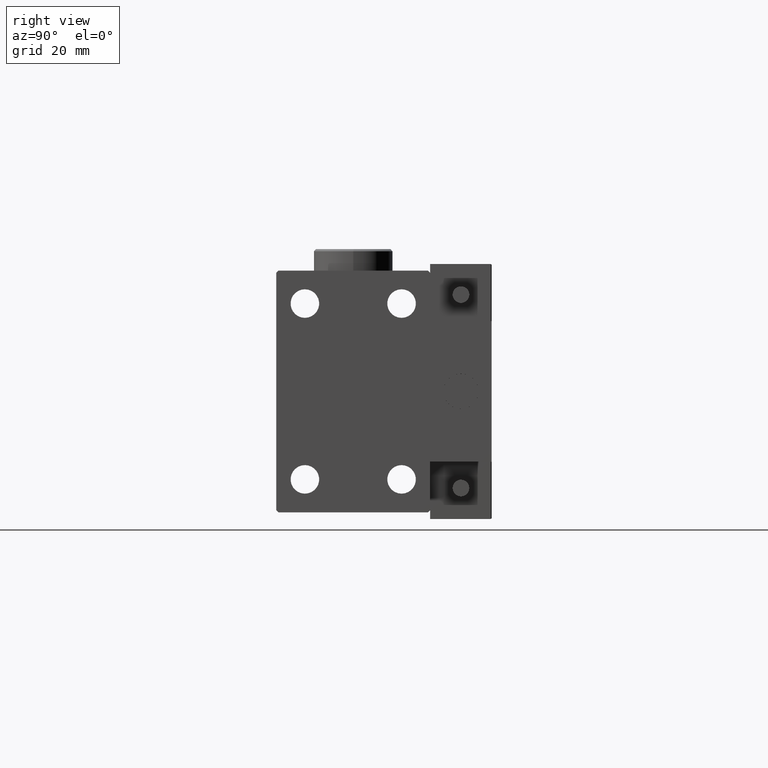
[diagram: clean part render]
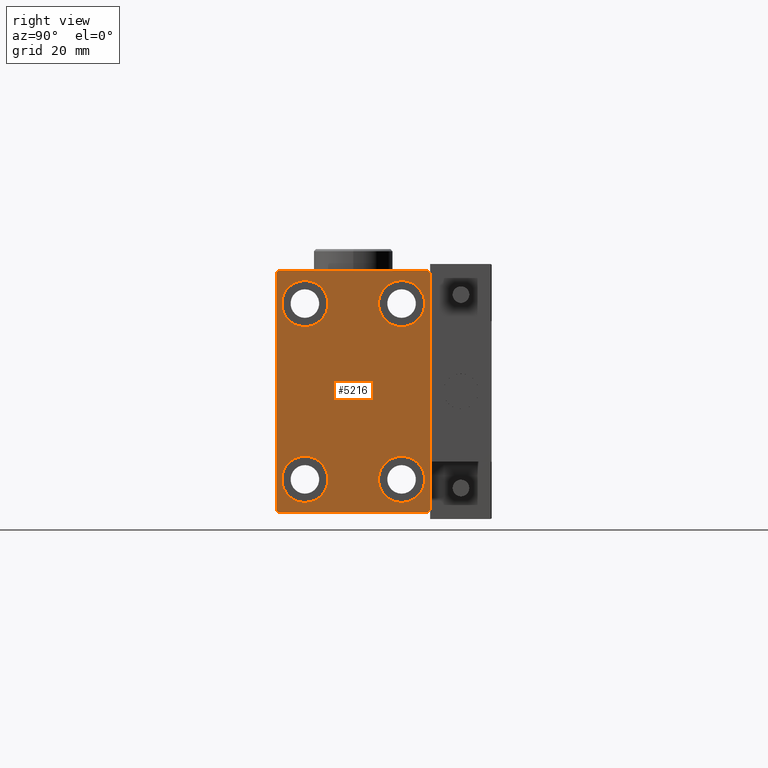
[diagram: same view with one face highlighted and labeled with its STEP entity id]
A machine part, right view. The second image highlights one B-rep face of the part: STEP entity #5216.
In plain terms, the highlighted planar face has unit normal (1, 0, 0).
Its self-contained STEP definition (entity closure, byte-faithful):
#258 = EDGE_CURVE ( 'NONE', #37055, #9059, #40497, .T. ) ;
#734 = DIRECTION ( 'NONE',  ( 1.000000000000000000, 0.000000000000000000, 0.000000000000000000 ) ) ;
#997 = ORIENTED_EDGE ( 'NONE', *, *, #19390, .T. ) ;
#1113 = DIRECTION ( 'NONE',  ( 0.000000000000000000, 0.000000000000000000, 1.000000000000000000 ) ) ;
#1217 = VERTEX_POINT ( 'NONE', #39242 ) ;
#1678 = DIRECTION ( 'NONE',  ( 0.000000000000000000, 0.000000000000000000, 1.000000000000000000 ) ) ;
#2777 = CARTESIAN_POINT ( 'NONE',  ( 76.00000000000000000, -17.50000000000000000, -27.50000000000000355 ) ) ;
#2888 = CARTESIAN_POINT ( 'NONE',  ( 76.00000000000000000, -17.00000000000001421, -27.50000000000000355 ) ) ;
#3281 = VECTOR ( 'NONE', #35600, 1000.000000000000114 ) ;
#3582 = DIRECTION ( 'NONE',  ( 0.000000000000000000, 0.000000000000000000, 1.000000000000000000 ) ) ;
#3590 = CARTESIAN_POINT ( 'NONE',  ( 76.00000000000000000, -22.24999999999998579, 22.24999999999998579 ) ) ;
#4389 = FACE_BOUND ( 'NONE', #20326, .T. ) ;
#4642 = PLANE ( 'NONE',  #18919 ) ;
#4661 = ORIENTED_EDGE ( 'NONE', *, *, #258, .T. ) ;
#5216 = ADVANCED_FACE ( 'NONE', ( #8549, #47425, #40129, #4389, #16371 ), #4642, .T. ) ;
#5219 = DIRECTION ( 'NONE',  ( -0.000000000000000000, 0.7071067811865378028, -0.7071067811865573427 ) ) ;
#5526 = VERTEX_POINT ( 'NONE', #12833 ) ;
#6126 = DIRECTION ( 'NONE',  ( 0.000000000000000000, 0.000000000000000000, 1.000000000000000000 ) ) ;
#6129 = AXIS2_PLACEMENT_3D ( 'NONE', #50292, #18733, #18482 ) ;
#6424 = LINE ( 'NONE', #2777, #42061 ) ;
#7414 = CARTESIAN_POINT ( 'NONE',  ( 76.00000000000000000, 17.00000000000000000, 27.50000000000000355 ) ) ;
#7581 = VECTOR ( 'NONE', #33250, 1000.000000000000114 ) ;
#7616 = EDGE_CURVE ( 'NONE', #8043, #9027, #8042, .T. ) ;
#8042 = LINE ( 'NONE', #12719, #28153 ) ;
#8043 = VERTEX_POINT ( 'NONE', #20504 ) ;
#8193 = EDGE_CURVE ( 'NONE', #48069, #24299, #38485, .T. ) ;
#8549 = FACE_BOUND ( 'NONE', #44695, .T. ) ;
#8962 = CARTESIAN_POINT ( 'NONE',  ( 76.00000000000000000, -11.00000000000000355, 25.25000000000000000 ) ) ;
#9000 = EDGE_CURVE ( 'NONE', #9027, #47729, #14992, .T. ) ;
#9027 = VERTEX_POINT ( 'NONE', #50465 ) ;
#9059 = VERTEX_POINT ( 'NONE', #8962 ) ;
#10539 = CARTESIAN_POINT ( 'NONE',  ( 76.00000000000000000, -11.00000000000000355, 20.00000000000000000 ) ) ;
#10744 = CARTESIAN_POINT ( 'NONE',  ( 76.00000000000000000, -17.50000000000000000, 26.99999999999998224 ) ) ;
#11126 = CARTESIAN_POINT ( 'NONE',  ( 76.00000000000000000, 11.00000000000000355, 25.25000000000000000 ) ) ;
#11315 = CIRCLE ( 'NONE', #20501, 5.250000000000000888 ) ;
#12326 = EDGE_LOOP ( 'NONE', ( #21644, #39529, #46064, #12942, #22433, #997, #30646, #22805 ) ) ;
#12447 = CARTESIAN_POINT ( 'NONE',  ( 76.00000000000000000, 0.000000000000000000, 0.000000000000000000 ) ) ;
#12719 = CARTESIAN_POINT ( 'NONE',  ( 76.00000000000000000, 17.50000000000000711, -27.50000000000000355 ) ) ;
#12833 = CARTESIAN_POINT ( 'NONE',  ( 76.00000000000000000, -16.99999999999998579, 27.49999999999999645 ) ) ;
#12942 = ORIENTED_EDGE ( 'NONE', *, *, #20925, .T. ) ;
#13137 = DIRECTION ( 'NONE',  ( -1.000000000000000000, -0.000000000000000000, -0.000000000000000000 ) ) ;
#13168 = AXIS2_PLACEMENT_3D ( 'NONE', #17894, #14221, #40871 ) ;
#14221 = DIRECTION ( 'NONE',  ( -1.000000000000000000, -0.000000000000000000, -0.000000000000000000 ) ) ;
#14333 = VERTEX_POINT ( 'NONE', #20030 ) ;
#14451 = CIRCLE ( 'NONE', #6129, 5.250000000000000888 ) ;
#14992 = LINE ( 'NONE', #35331, #34050 ) ;
#16371 = FACE_OUTER_BOUND ( 'NONE', #12326, .T. ) ;
#16533 = CIRCLE ( 'NONE', #40670, 5.250000000000000888 ) ;
#17187 = VERTEX_POINT ( 'NONE', #2888 ) ;
#17461 = VECTOR ( 'NONE', #5219, 1000.000000000000000 ) ;
#17578 = EDGE_CURVE ( 'NONE', #45165, #48590, #51483, .T. ) ;
#17591 = DIRECTION ( 'NONE',  ( 0.000000000000000000, 0.000000000000000000, 1.000000000000000000 ) ) ;
#17626 = DIRECTION ( 'NONE',  ( -1.000000000000000000, -0.000000000000000000, -0.000000000000000000 ) ) ;
#17709 = VERTEX_POINT ( 'NONE', #50223 ) ;
#17894 = CARTESIAN_POINT ( 'NONE',  ( 76.00000000000000000, 11.00000000000000355, 20.00000000000000000 ) ) ;
#18114 = EDGE_CURVE ( 'NONE', #40302, #14333, #16533, .T. ) ;
#18482 = DIRECTION ( 'NONE',  ( 0.000000000000000000, 0.000000000000000000, 1.000000000000000000 ) ) ;
#18683 = LINE ( 'NONE', #41462, #17461 ) ;
#18733 = DIRECTION ( 'NONE',  ( -1.000000000000000000, -0.000000000000000000, -0.000000000000000000 ) ) ;
#18891 = CARTESIAN_POINT ( 'NONE',  ( 76.00000000000000000, 11.00000000000000355, -14.75000000000000000 ) ) ;
#18919 = AXIS2_PLACEMENT_3D ( 'NONE', #12447, #734, #28386 ) ;
#18950 = CARTESIAN_POINT ( 'NONE',  ( 76.00000000000000000, -11.00000000000000355, -20.00000000000000000 ) ) ;
#19390 = EDGE_CURVE ( 'NONE', #17709, #8043, #51239, .T. ) ;
#19452 = EDGE_CURVE ( 'NONE', #39622, #1217, #29935, .T. ) ;
#20030 = CARTESIAN_POINT ( 'NONE',  ( 76.00000000000000000, -11.00000000000000355, -14.75000000000000000 ) ) ;
#20326 = EDGE_LOOP ( 'NONE', ( #48501, #26493 ) ) ;
#20391 = CIRCLE ( 'NONE', #38716, 5.250000000000000888 ) ;
#20501 = AXIS2_PLACEMENT_3D ( 'NONE', #10539, #17626, #6126 ) ;
#20504 = CARTESIAN_POINT ( 'NONE',  ( 76.00000000000000000, 17.50000000000000711, -27.00000000000000355 ) ) ;
#20876 = EDGE_LOOP ( 'NONE', ( #4661, #40989 ) ) ;
#20925 = EDGE_CURVE ( 'NONE', #24299, #17187, #18683, .T. ) ;
#21644 = ORIENTED_EDGE ( 'NONE', *, *, #33865, .T. ) ;
#22093 = AXIS2_PLACEMENT_3D ( 'NONE', #25663, #37421, #17591 ) ;
#22433 = ORIENTED_EDGE ( 'NONE', *, *, #35945, .T. ) ;
#22805 = ORIENTED_EDGE ( 'NONE', *, *, #9000, .T. ) ;
#23377 = DIRECTION ( 'NONE',  ( -1.000000000000000000, -0.000000000000000000, -0.000000000000000000 ) ) ;
#24299 = VERTEX_POINT ( 'NONE', #37668 ) ;
#24377 = CARTESIAN_POINT ( 'NONE',  ( 76.00000000000000000, 17.50000000000000000, 27.50000000000000355 ) ) ;
#25663 = CARTESIAN_POINT ( 'NONE',  ( 76.00000000000000000, 11.00000000000000355, -20.00000000000000000 ) ) ;
#26205 = CARTESIAN_POINT ( 'NONE',  ( 76.00000000000000000, -17.50000000000000000, 27.49999999999999645 ) ) ;
#26493 = ORIENTED_EDGE ( 'NONE', *, *, #39255, .T. ) ;
#27003 = CARTESIAN_POINT ( 'NONE',  ( 76.00000000000000000, 22.25000000000000711, -22.25000000000000711 ) ) ;
#27176 = EDGE_CURVE ( 'NONE', #5526, #48069, #44972, .T. ) ;
#28153 = VECTOR ( 'NONE', #32829, 1000.000000000000000 ) ;
#28386 = DIRECTION ( 'NONE',  ( 0.000000000000000000, 0.000000000000000000, -1.000000000000000000 ) ) ;
#29026 = DIRECTION ( 'NONE',  ( -1.000000000000000000, -0.000000000000000000, -0.000000000000000000 ) ) ;
#29935 = CIRCLE ( 'NONE', #38248, 5.250000000000000888 ) ;
#30646 = ORIENTED_EDGE ( 'NONE', *, *, #7616, .T. ) ;
#30655 = DIRECTION ( 'NONE',  ( -0.000000000000000000, -0.7071067811865474617, 0.7071067811865474617 ) ) ;
#30767 = EDGE_LOOP ( 'NONE', ( #48795, #33938 ) ) ;
#30903 = DIRECTION ( 'NONE',  ( 0.000000000000000000, 0.000000000000000000, -1.000000000000000000 ) ) ;
#31190 = DIRECTION ( 'NONE',  ( 0.000000000000000000, 1.000000000000000000, 0.000000000000000000 ) ) ;
#31252 = CIRCLE ( 'NONE', #22093, 5.250000000000000888 ) ;
#32169 = CARTESIAN_POINT ( 'NONE',  ( 76.00000000000000000, -11.00000000000000355, 20.00000000000000000 ) ) ;
#32272 = CARTESIAN_POINT ( 'NONE',  ( 76.00000000000000000, 11.00000000000000355, 14.75000000000000000 ) ) ;
#32764 = CARTESIAN_POINT ( 'NONE',  ( 76.00000000000000000, -11.00000000000000355, -25.25000000000000000 ) ) ;
#32829 = DIRECTION ( 'NONE',  ( 0.000000000000000000, -1.261617073437677752E-16, 1.000000000000000000 ) ) ;
#32993 = EDGE_CURVE ( 'NONE', #48590, #45165, #14451, .T. ) ;
#33198 = VECTOR ( 'NONE', #30903, 1000.000000000000000 ) ;
#33250 = DIRECTION ( 'NONE',  ( 0.000000000000000000, -0.7071067811865474617, -0.7071067811865474617 ) ) ;
#33865 = EDGE_CURVE ( 'NONE', #47729, #5526, #36107, .T. ) ;
#33938 = ORIENTED_EDGE ( 'NONE', *, *, #32993, .T. ) ;
#34050 = VECTOR ( 'NONE', #30655, 1000.000000000000114 ) ;
#35331 = CARTESIAN_POINT ( 'NONE',  ( 76.00000000000000000, 22.25000000000000355, 22.25000000000000355 ) ) ;
#35600 = DIRECTION ( 'NONE',  ( -0.000000000000000000, 0.7071067811865474617, 0.7071067811865474617 ) ) ;
#35945 = EDGE_CURVE ( 'NONE', #17187, #17709, #6424, .T. ) ;
#36107 = LINE ( 'NONE', #24377, #43092 ) ;
#37055 = VERTEX_POINT ( 'NONE', #47296 ) ;
#37421 = DIRECTION ( 'NONE',  ( -1.000000000000000000, -0.000000000000000000, -0.000000000000000000 ) ) ;
#37592 = DIRECTION ( 'NONE',  ( 0.000000000000000000, -1.000000000000000000, -1.982541115402065110E-16 ) ) ;
#37668 = CARTESIAN_POINT ( 'NONE',  ( 76.00000000000000000, -17.50000000000000000, -27.00000000000000355 ) ) ;
#38248 = AXIS2_PLACEMENT_3D ( 'NONE', #48624, #13137, #1678 ) ;
#38485 = LINE ( 'NONE', #26205, #33198 ) ;
#38716 = AXIS2_PLACEMENT_3D ( 'NONE', #18950, #23377, #42437 ) ;
#39242 = CARTESIAN_POINT ( 'NONE',  ( 76.00000000000000000, 11.00000000000000355, -25.25000000000000000 ) ) ;
#39255 = EDGE_CURVE ( 'NONE', #14333, #40302, #20391, .T. ) ;
#39529 = ORIENTED_EDGE ( 'NONE', *, *, #27176, .T. ) ;
#39622 = VERTEX_POINT ( 'NONE', #18891 ) ;
#40129 = FACE_BOUND ( 'NONE', #30767, .T. ) ;
#40302 = VERTEX_POINT ( 'NONE', #32764 ) ;
#40497 = CIRCLE ( 'NONE', #47133, 5.250000000000000888 ) ;
#40670 = AXIS2_PLACEMENT_3D ( 'NONE', #46873, #42961, #3582 ) ;
#40871 = DIRECTION ( 'NONE',  ( 0.000000000000000000, 0.000000000000000000, 1.000000000000000000 ) ) ;
#40989 = ORIENTED_EDGE ( 'NONE', *, *, #42053, .T. ) ;
#41462 = CARTESIAN_POINT ( 'NONE',  ( 76.00000000000000000, -22.25000000000024869, -22.24999999999963407 ) ) ;
#42053 = EDGE_CURVE ( 'NONE', #9059, #37055, #11315, .T. ) ;
#42061 = VECTOR ( 'NONE', #31190, 1000.000000000000000 ) ;
#42437 = DIRECTION ( 'NONE',  ( 0.000000000000000000, 0.000000000000000000, 1.000000000000000000 ) ) ;
#42961 = DIRECTION ( 'NONE',  ( -1.000000000000000000, -0.000000000000000000, -0.000000000000000000 ) ) ;
#43092 = VECTOR ( 'NONE', #37592, 1000.000000000000000 ) ;
#44695 = EDGE_LOOP ( 'NONE', ( #48977, #44721 ) ) ;
#44721 = ORIENTED_EDGE ( 'NONE', *, *, #19452, .T. ) ;
#44972 = LINE ( 'NONE', #3590, #7581 ) ;
#45165 = VERTEX_POINT ( 'NONE', #32272 ) ;
#46064 = ORIENTED_EDGE ( 'NONE', *, *, #8193, .T. ) ;
#46483 = EDGE_CURVE ( 'NONE', #1217, #39622, #31252, .T. ) ;
#46873 = CARTESIAN_POINT ( 'NONE',  ( 76.00000000000000000, -11.00000000000000355, -20.00000000000000000 ) ) ;
#47133 = AXIS2_PLACEMENT_3D ( 'NONE', #32169, #29026, #1113 ) ;
#47296 = CARTESIAN_POINT ( 'NONE',  ( 76.00000000000000000, -11.00000000000000355, 14.75000000000000000 ) ) ;
#47425 = FACE_BOUND ( 'NONE', #20876, .T. ) ;
#47729 = VERTEX_POINT ( 'NONE', #7414 ) ;
#48069 = VERTEX_POINT ( 'NONE', #10744 ) ;
#48501 = ORIENTED_EDGE ( 'NONE', *, *, #18114, .T. ) ;
#48590 = VERTEX_POINT ( 'NONE', #11126 ) ;
#48624 = CARTESIAN_POINT ( 'NONE',  ( 76.00000000000000000, 11.00000000000000355, -20.00000000000000000 ) ) ;
#48795 = ORIENTED_EDGE ( 'NONE', *, *, #17578, .T. ) ;
#48977 = ORIENTED_EDGE ( 'NONE', *, *, #46483, .T. ) ;
#50223 = CARTESIAN_POINT ( 'NONE',  ( 76.00000000000000000, 17.00000000000000711, -27.50000000000000355 ) ) ;
#50292 = CARTESIAN_POINT ( 'NONE',  ( 76.00000000000000000, 11.00000000000000355, 20.00000000000000000 ) ) ;
#50465 = CARTESIAN_POINT ( 'NONE',  ( 76.00000000000000000, 17.50000000000000000, 27.00000000000000355 ) ) ;
#51239 = LINE ( 'NONE', #27003, #3281 ) ;
#51483 = CIRCLE ( 'NONE', #13168, 5.250000000000000888 ) ;